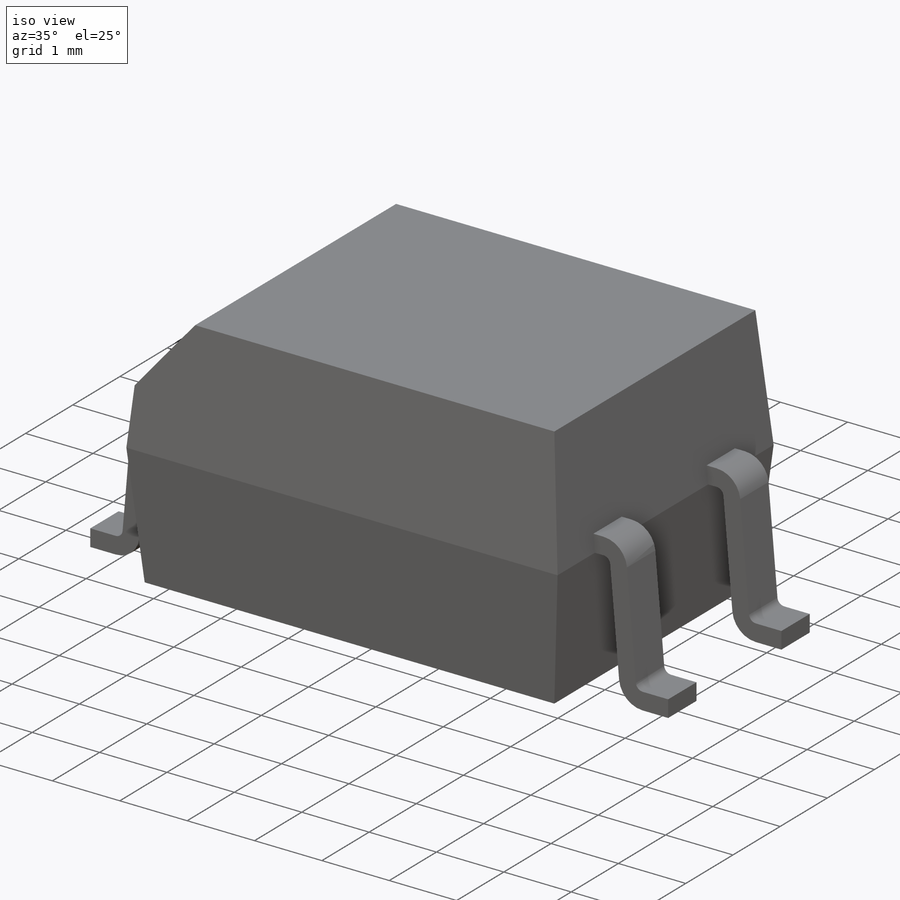
[diagram: iso view]
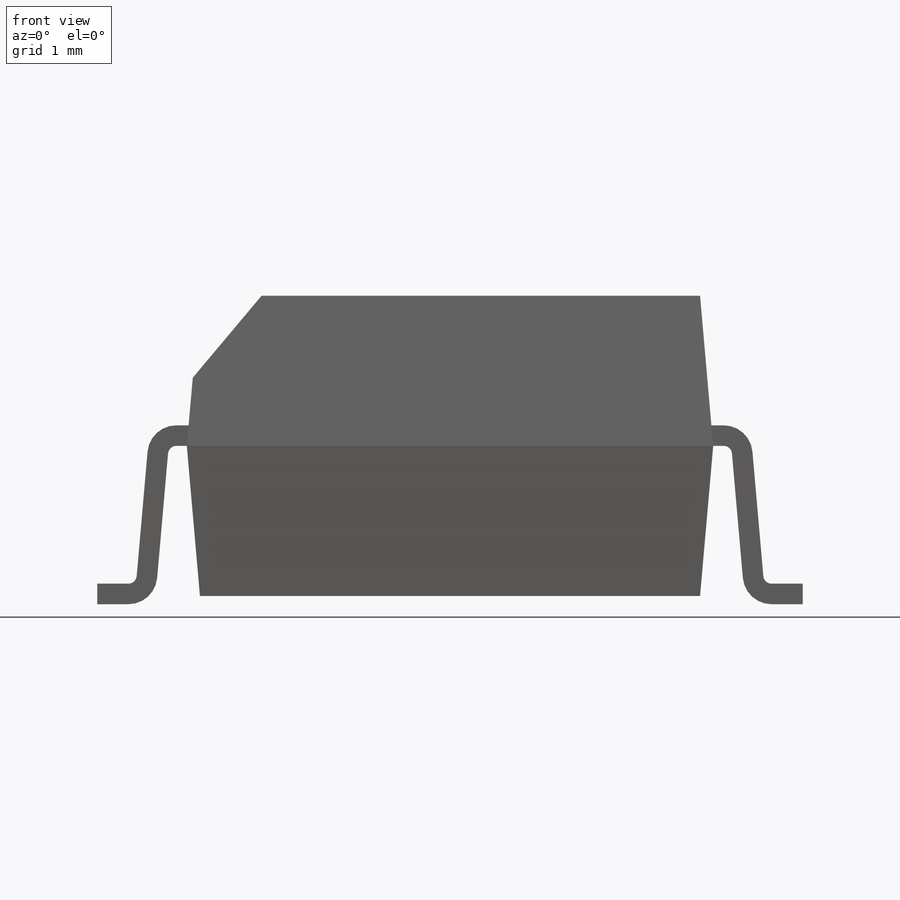
[diagram: front view]
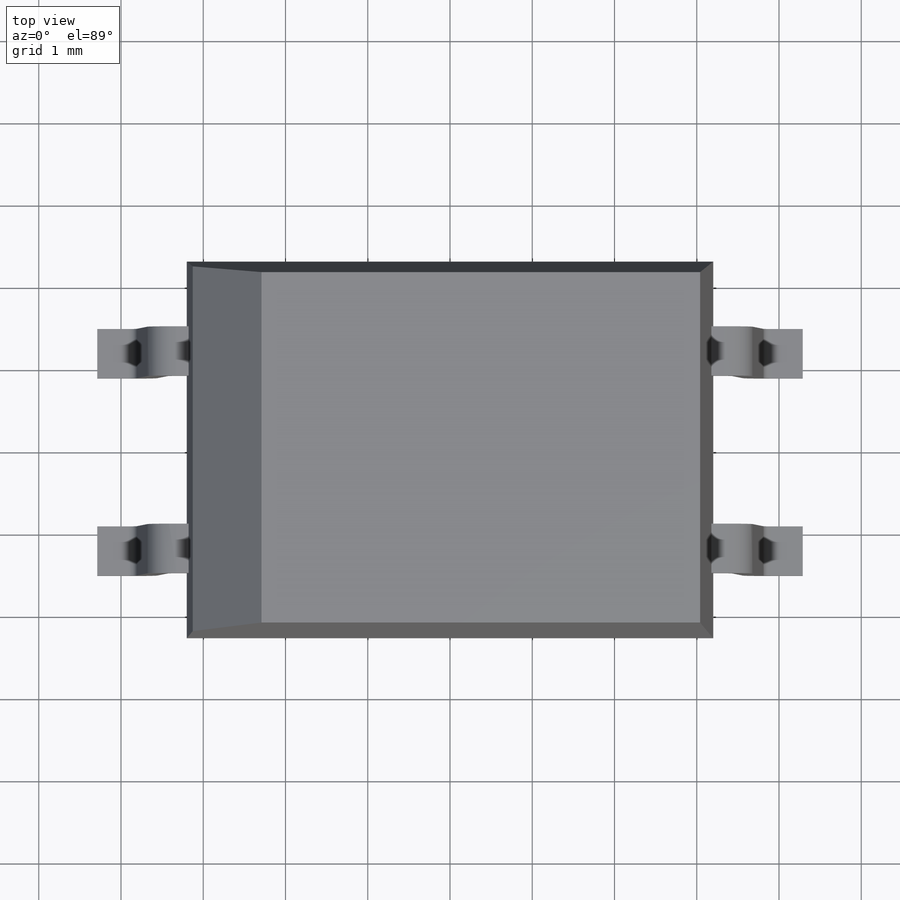
[diagram: top view]
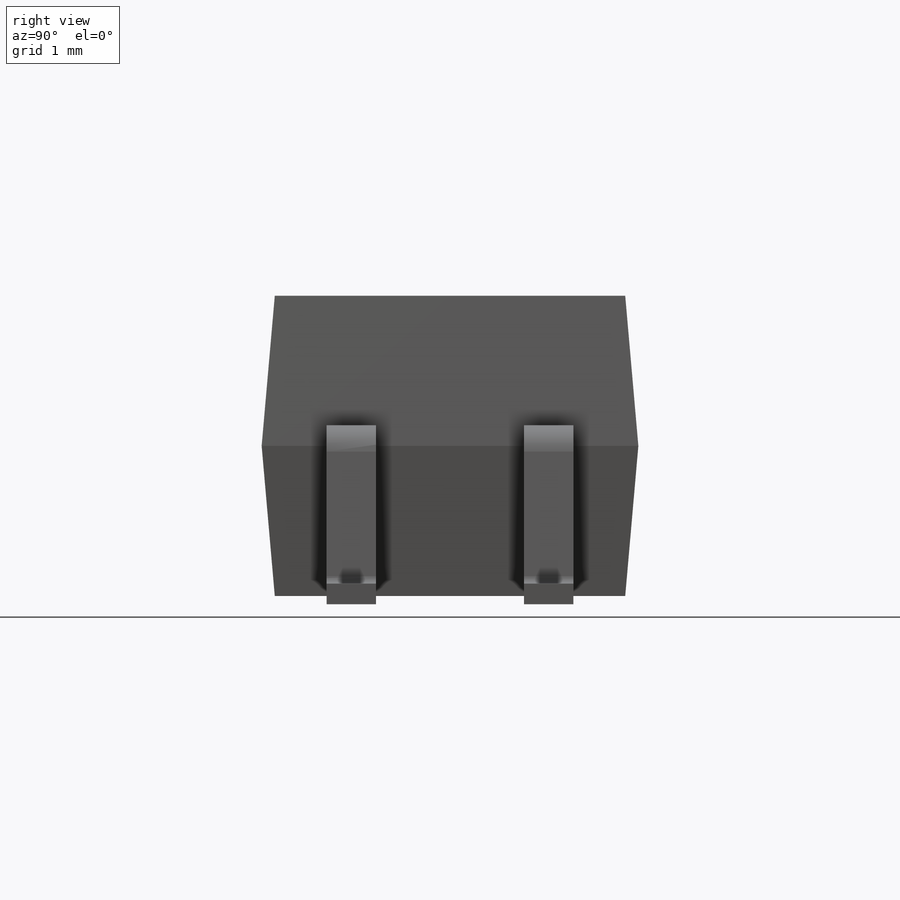
[diagram: right view]
SOLIDWORKS PART (.sldprt)
format: sldprt  version: not decoded by parser v0  size: 266,240 bytes
history: native  units: mm
features: sketch x3, extrude x2, fillet x2, material x1, chamfer x1, mirror x1, plane x1 (+12 scaffold rows collapsed)
feature tree (23):
  scaffold x12  (default folders/planes/origin — collapsed)
  material  "Material <not specified>"
  sketch  "Sketch1"  dims[D1=4.58mm D2=6.4mm]
  extrude  "Extrude1"  Depth=1.825mm
  chamfer  "Chamfer1"  Distance=1mm Angle=35deg
  sketch  "Sketch2"  dims[c1.D1=0.25mm c1.D2=0.25mm c1.D3=0.25mm c1.D4=~1.986094mm c2.D4=95.0deg c2.D5=0.22mm c2.D6=0.7mm c2.D7=0.1mm]
  extrude  "Extrude2"  Depth=0.3mm
  mirror  "Mirror1"
  fillet  "Fillet1"  Radius=0.1mm
  fillet  "Fillet2"  Radius=0.35mm
  plane  "Board Plane"  Offset=1.925mm
  sketch  "Component_Outline"
decode coverage: 7 of 9 modeling features carry decoded parameters
note: ~ marks probable driven/reference dimensions
note: suppression state not decoded; provenance and decode notes live in map.json
